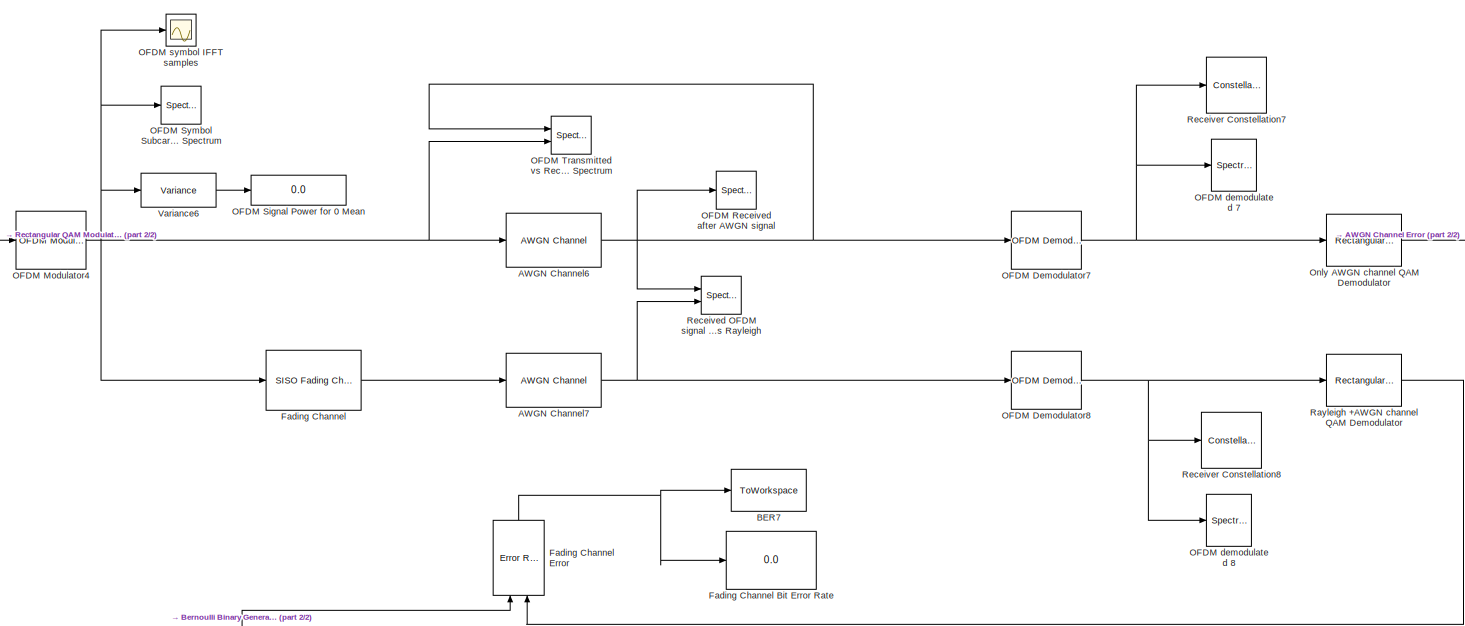
[diagram: root canvas - part 1/2, full width, middle band]
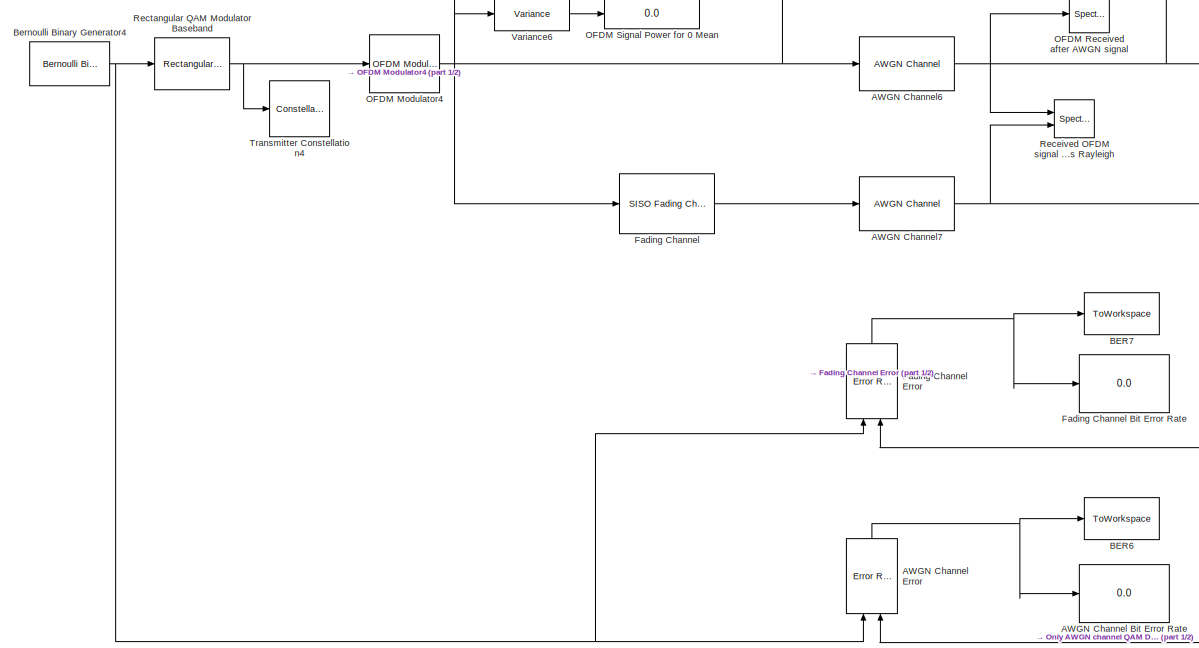
[diagram: root canvas - part 2/2, left side, full height]
MODEL slx_b8c40b63633c
KIND model
CONFIG AbsTol = auto
CONFIG EnableMultiTasking = off
CONFIG FixedStep = auto
CONFIG MaxStep = auto
CONFIG MinStep = auto
CONFIG RelTol = 1e-3
CONFIG SampleTimeConstraint = Unconstrained
CONFIG Solver = VariableStepAuto
CONFIG SolverName = VariableStepAuto
CONFIG StartTime = 0.0
CONFIG StopTime = 0.1
BLOCK [Display] AWGN Channel Bit Error Rate
  Decimation = 1
  Ports = [1]
BLOCK [Reference] AWGN Channel Error  REF=commsink2/Error Rate
Calculation
  Ports = [2, 1]
  SourceBlock = commsink2/Error Rate\nCalculation
  SourceProductBaseCode = CM
  SourceProductName = Communications System Toolbox
  SourceType = Error Rate Calculation
BLOCK [Reference] AWGN Channel6  REF=commchan3/AWGN
Channel
  Ports = [1, 1]
  SourceBlock = commchan3/AWGN\nChannel
  SourceProductBaseCode = CM
  SourceProductName = Communications System Toolbox
  SourceType = AWGN Channel
  UserDataPersistent = on
BLOCK [Reference] AWGN Channel7  REF=commchan3/AWGN
Channel
  Ports = [1, 1]
  SourceBlock = commchan3/AWGN\nChannel
  SourceProductBaseCode = CM
  SourceProductName = Communications System Toolbox
  SourceType = AWGN Channel
  UserDataPersistent = on
BLOCK [ToWorkspace] BER6
  MaxDataPoints = inf
  Ports = [1]
  SampleTime = -1
  Save2DSignal = 2-D array (concatenate along first dimension)
  VariableName = BER_values6
BLOCK [ToWorkspace] BER7
  MaxDataPoints = inf
  Ports = [1]
  SampleTime = -1
  Save2DSignal = 2-D array (concatenate along first dimension)
  VariableName = BER_values7
BLOCK [Reference] Bernoulli Binary Generator4  REF=commrandsrc3/Bernoulli Binary
Generator
  Ports = [0, 1]
  SourceBlock = commrandsrc3/Bernoulli Binary\nGenerator
  SourceProductBaseCode = CM
  SourceProductName = Communications System Toolbox
  SourceType = Bernoulli Binary Generator
BLOCK [Reference] Fading Channel  REF=commchan3/SISO Fading Channel
  Ports = [1, 1]
  SourceBlock = commchan3/SISO Fading Channel
  SourceProductBaseCode = CM
  SourceProductName = Communications System Toolbox
  SourceType = SISO Fading Channel
BLOCK [Display] Fading Channel Bit Error Rate
  Decimation = 1
  Ports = [1]
BLOCK [Reference] Fading Channel Error  REF=commsink2/Error Rate
Calculation
  Ports = [2, 1]
  SourceBlock = commsink2/Error Rate\nCalculation
  SourceProductBaseCode = CM
  SourceProductName = Communications System Toolbox
  SourceType = Error Rate Calculation
BLOCK [Reference] OFDM Demodulator7  REF=commofdm/OFDM Demodulator
  Ports = [1, 1]
  SourceBlock = commofdm/OFDM Demodulator
  SourceProductBaseCode = CM
  SourceProductName = Communications System Toolbox
  SourceType = OFDM Demodulator
BLOCK [Reference] OFDM Demodulator8  REF=commofdm/OFDM Demodulator
  Ports = [1, 1]
  SourceBlock = commofdm/OFDM Demodulator
  SourceProductBaseCode = CM
  SourceProductName = Communications System Toolbox
  SourceType = OFDM Demodulator
BLOCK [Reference] OFDM Modulator4  REF=commofdm/OFDM Modulator
  Ports = [1, 1]
  SourceBlock = commofdm/OFDM Modulator
  SourceProductBaseCode = CM
  SourceProductName = Communications System Toolbox
  SourceType = OFDM Modulator
BLOCK [SpectrumAnalyzer] OFDM Received after AWGN signal
  Commented = on
  Ports = [1]
  ScopeSpecificationString = spbscopes.SpectrumAnalyzerBlockCfg('CurrentConfiguration', extmgr.ConfigurationSet(extmgr.Configuration('Core','General UI',true),extmgr.Configuration('Core','Source UI',true),extmgr.Configuration('Sources','WiredSimulink',true),extmgr.Configuration('Sources','SimulinkEvent',false),extmgr.Configuration('Sources','Simulink',false),extmgr.Configuration('Sources','SPTool',false),extmgr.Configuration(...<+3808ch>
BLOCK [Display] OFDM Signal Power for 0 Mean
  Decimation = 1
  Ports = [1]
BLOCK [SpectrumAnalyzer] OFDM Symbol Subcarriers Spectrum
  Commented = on
  Ports = [1]
  ScopeSpecificationString = spbscopes.SpectrumAnalyzerBlockCfg('CurrentConfiguration', extmgr.ConfigurationSet(extmgr.Configuration('Core','General UI',true),extmgr.Configuration('Core','Source UI',true),extmgr.Configuration('Sources','WiredSimulink',true),extmgr.Configuration('Sources','SimulinkEvent',false),extmgr.Configuration('Sources','Simulink',false),extmgr.Configuration('Sources','SPTool',false),extmgr.Configuration(...<+3809ch>
BLOCK [SpectrumAnalyzer] OFDM Transmitted vs Received Spectrum
  Commented = on
  NumInputPorts = 2
  Ports = [2]
  ScopeSpecificationString = spbscopes.SpectrumAnalyzerBlockCfg('CurrentConfiguration', extmgr.ConfigurationSet(extmgr.Configuration('Core','General UI',true),extmgr.Configuration('Core','Source UI',true),extmgr.Configuration('Sources','WiredSimulink',true),extmgr.Configuration('Sources','SimulinkEvent',false),extmgr.Configuration('Sources','Simulink',false),extmgr.Configuration('Sources','SPTool',false),extmgr.Configuration(...<+3907ch>
BLOCK [SpectrumAnalyzer] OFDM demodulated 7
  Commented = on
  Ports = [1]
  ScopeSpecificationString = spbscopes.SpectrumAnalyzerBlockCfg('CurrentConfiguration', extmgr.ConfigurationSet(extmgr.Configuration('Core','General UI',true),extmgr.Configuration('Core','Source UI',true),extmgr.Configuration('Sources','WiredSimulink',true),extmgr.Configuration('Sources','SimulinkEvent',false),extmgr.Configuration('Sources','Simulink',false),extmgr.Configuration('Sources','SPTool',false),extmgr.Configuration(...<+3810ch>
BLOCK [SpectrumAnalyzer] OFDM demodulated 8
  Commented = on
  Ports = [1]
  ScopeSpecificationString = spbscopes.SpectrumAnalyzerBlockCfg('CurrentConfiguration', extmgr.ConfigurationSet(extmgr.Configuration('Core','General UI',true),extmgr.Configuration('Core','Source UI',true),extmgr.Configuration('Sources','WiredSimulink',true),extmgr.Configuration('Sources','SimulinkEvent',false),extmgr.Configuration('Sources','Simulink',false),extmgr.Configuration('Sources','SPTool',false),extmgr.Configuration(...<+3810ch>
BLOCK [Scope] OFDM symbol IFFT samples
  Commented = on
  DefaultConfigurationName = spbscopes.TimeScopeBlockCfg
  Floating = off
  NumInputPorts = 1
  Ports = [1]
  ScopeSpecificationString = spbscopes.TimeScopeBlockCfg('CurrentConfiguration', extmgr.ConfigurationSet(extmgr.Configuration('Core','General UI',true),extmgr.Configuration('Core','Source UI',true),extmgr.Configuration('Sources','WiredSimulink',true,'DataLoggingVariableName','ScopeData3'),extmgr.Configuration('Visuals','Time Domain',true,'DisplayPropertyDefaults',struct('MinYLimReal','-0.27455','MaxYLimReal','0.27343','YLabel...<+1795ch>
  UserDataPersistent = on
BLOCK [Reference] Only AWGN channel QAM Demodulator  REF=commdigbbndam3/Rectangular QAM
Demodulator
Baseband
  Ports = [1, 1]
  SourceBlock = commdigbbndam3/Rectangular QAM\nDemodulator\nBaseband
  SourceProductBaseCode = CM
  SourceProductName = Communications System Toolbox
  SourceType = Rectangular QAM Demodulator Baseband
BLOCK [Reference] Rayleigh +AWGN channel QAM Demodulator  REF=commdigbbndam3/Rectangular QAM
Demodulator
Baseband
  Ports = [1, 1]
  SourceBlock = commdigbbndam3/Rectangular QAM\nDemodulator\nBaseband
  SourceProductBaseCode = CM
  SourceProductName = Communications System Toolbox
  SourceType = Rectangular QAM Demodulator Baseband
BLOCK [SpectrumAnalyzer] Received OFDM signal AWGN vs Rayleigh
  Commented = on
  NumInputPorts = 2
  Ports = [2]
  ScopeSpecificationString = spbscopes.SpectrumAnalyzerBlockCfg('CurrentConfiguration', extmgr.ConfigurationSet(extmgr.Configuration('Core','General UI',true),extmgr.Configuration('Core','Source UI',true),extmgr.Configuration('Sources','WiredSimulink',true),extmgr.Configuration('Sources','SimulinkEvent',false),extmgr.Configuration('Sources','Simulink',false),extmgr.Configuration('Sources','SPTool',false),extmgr.Configuration(...<+3906ch>
BLOCK [ConstellationDiagram] Receiver Constellation7
  Commented = on
  Ports = [1]
  ScopeSpecificationString = comm.scopes.ConstellationDiagramBlockCfg('CurrentConfiguration', extmgr.ConfigurationSet(extmgr.Configuration('Core','General UI',true),extmgr.Configuration('Core','Source UI',true),extmgr.Configuration('Sources','WiredSimulink',true),extmgr.Configuration('Sources','SimulinkEvent',false),extmgr.Configuration('Sources','Simulink',false),extmgr.Configuration('Sources','SPTool',false),extmgr.Configur...<+2469ch>
BLOCK [ConstellationDiagram] Receiver Constellation8
  Commented = on
  Ports = [1]
  ScopeSpecificationString = comm.scopes.ConstellationDiagramBlockCfg('CurrentConfiguration', extmgr.ConfigurationSet(extmgr.Configuration('Core','General UI',true),extmgr.Configuration('Core','Source UI',true),extmgr.Configuration('Sources','WiredSimulink',true),extmgr.Configuration('Sources','SimulinkEvent',false),extmgr.Configuration('Sources','Simulink',false),extmgr.Configuration('Sources','SPTool',false),extmgr.Configur...<+2485ch>
BLOCK [Reference] Rectangular QAM Modulator Baseband  REF=commdigbbndam3/Rectangular QAM
Modulator
Baseband
  Ports = [1, 1]
  SourceBlock = commdigbbndam3/Rectangular QAM\nModulator\nBaseband
  SourceProductBaseCode = CM
  SourceProductName = Communications System Toolbox
  SourceType = Rectangular QAM Modulator Baseband
BLOCK [ConstellationDiagram] Transmitter Constellation4
  Commented = on
  Ports = [1]
  ScopeSpecificationString = comm.scopes.ConstellationDiagramBlockCfg('CurrentConfiguration', extmgr.ConfigurationSet(extmgr.Configuration('Core','General UI',true),extmgr.Configuration('Core','Source UI',true),extmgr.Configuration('Sources','WiredSimulink',true),extmgr.Configuration('Sources','SimulinkEvent',false),extmgr.Configuration('Sources','Simulink',false),extmgr.Configuration('Sources','SPTool',false),extmgr.Configur...<+2434ch>
BLOCK [Reference] Variance6  REF=dspstat3/Variance
  Ports = [1, 1]
  SourceBlock = dspstat3/Variance
  SourceProductBaseCode = DS
  SourceProductName = DSP System Toolbox
  SourceType = Variance
  UserDataPersistent = on
NET AWGN Channel Error:1 -> AWGN Channel Bit Error Rate:1, BER6:1
NET AWGN Channel6:1 -> OFDM Demodulator7:1, OFDM Received after AWGN signal:1, OFDM Transmitted vs Received Spectrum:1, Received OFDM signal AWGN vs Rayleigh:1
NET AWGN Channel7:1 -> OFDM Demodulator8:1, Received OFDM signal AWGN vs Rayleigh:2
NET Bernoulli Binary Generator4:1 -> AWGN Channel Error:1, Fading Channel Error:1, Rectangular QAM Modulator Baseband:1
NET Fading Channel Error:1 -> BER7:1, Fading Channel Bit Error Rate:1
LINE Fading Channel:1 -> AWGN Channel7:1
NET OFDM Demodulator7:1 -> OFDM demodulated 7:1, Only AWGN channel QAM Demodulator:1, Receiver Constellation7:1
NET OFDM Demodulator8:1 -> OFDM demodulated 8:1, Rayleigh +AWGN channel QAM Demodulator:1, Receiver Constellation8:1
NET OFDM Modulator4:1 -> AWGN Channel6:1, Fading Channel:1, OFDM Symbol Subcarriers Spectrum:1, OFDM Transmitted vs Received Spectrum:2, OFDM symbol IFFT samples:1, Variance6:1
LINE Only AWGN channel QAM Demodulator:1 -> AWGN Channel Error:2
LINE Rayleigh +AWGN channel QAM Demodulator:1 -> Fading Channel Error:2
NET Rectangular QAM Modulator Baseband:1 -> OFDM Modulator4:1, Transmitter Constellation4:1
LINE Variance6:1 -> OFDM Signal Power for 0 Mean:1
note: NET lines group one-source signal fan-out (src -> all destinations, sorted); 1:1 wires keep LINE
